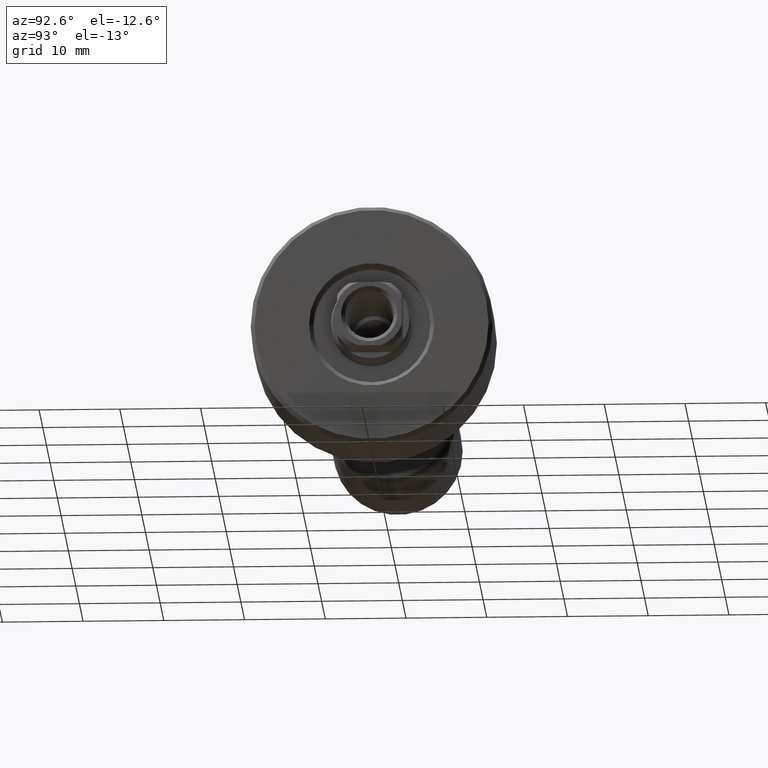
[diagram: clean part render]
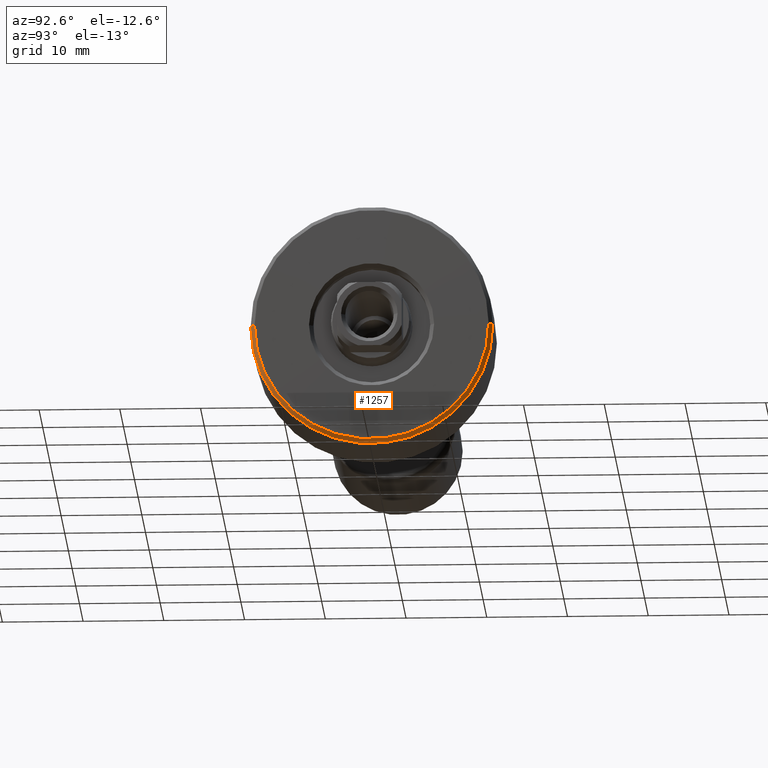
[diagram: same view with one face highlighted and labeled with its STEP entity id]
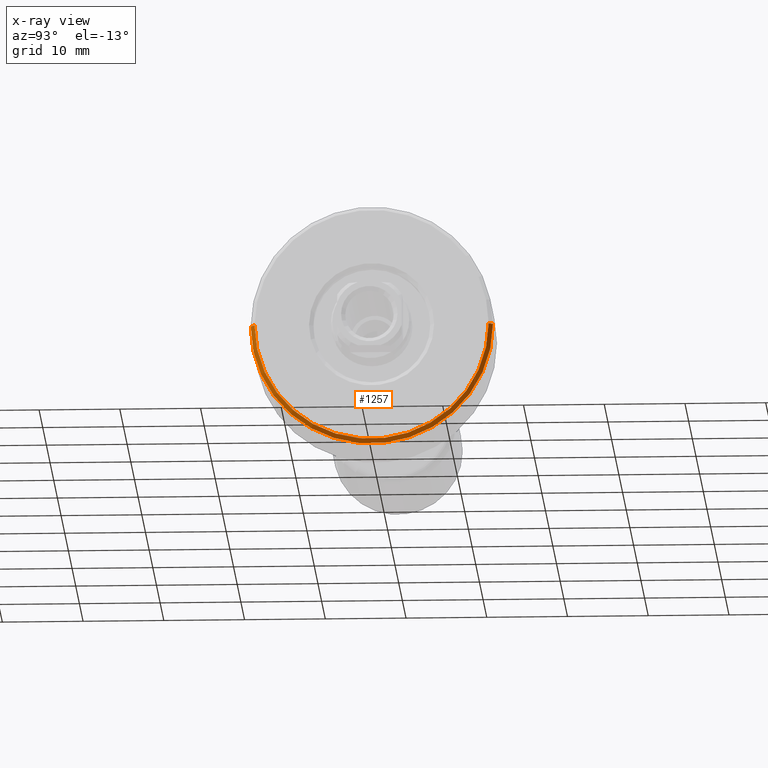
[diagram: x-ray of the same camera — body ghosted, the highlighted face saturated]
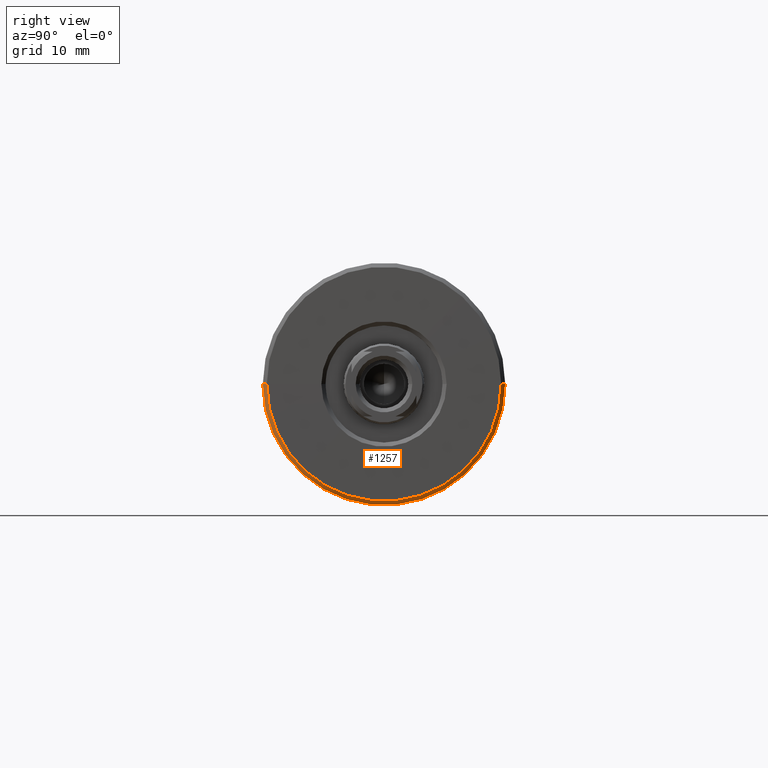
[diagram: same view with one face highlighted and labeled with its STEP entity id]
A machine part, auxiliary view. The second image highlights one B-rep face of the part: STEP entity #1257.
The next image is the same camera in x-ray: the body ghosted, the highlighted face saturated — about 0% of this face is hidden behind the body in this view.
A second angle (right view) of the same face is appended — the face is thin or edge-on in the first view.
In plain terms, the highlighted conical surface has half-angle 45 deg.
Its self-contained STEP definition (entity closure, byte-faithful):
#95 = EDGE_CURVE ( 'NONE', #1512, #2361, #1477, .T. ) ;
#160 = VECTOR ( 'NONE', #1825, 1000.000000000000114 ) ;
#253 = CARTESIAN_POINT ( 'NONE',  ( -0.1000000000006620593, -1.936230527284280752E-14, 0.000000000000000000 ) ) ;
#289 = CARTESIAN_POINT ( 'NONE',  ( -0.6000000000006806555, 14.99999999999996270, 1.836970198721027617E-15 ) ) ;
#291 = EDGE_LOOP ( 'NONE', ( #1732, #1491, #1517, #1474 ) ) ;
#364 = CIRCLE ( 'NONE', #1074, 14.99999999999998224 ) ;
#405 = DIRECTION ( 'NONE',  ( -6.432932890080667202E-16, -1.000000000000000000, 0.000000000000000000 ) ) ;
#555 = CARTESIAN_POINT ( 'NONE',  ( -0.1000000000006713574, -14.49999999999997335, 0.000000000000000000 ) ) ;
#611 = DIRECTION ( 'NONE',  ( -1.000000000000000000, 6.415603269213350828E-16, -0.000000000000000000 ) ) ;
#676 = AXIS2_PLACEMENT_3D ( 'NONE', #774, #611, #405 ) ;
#758 = CONICAL_SURFACE ( 'NONE', #676, 14.99999999999998224, 0.7853981633974482790 ) ;
#767 = EDGE_CURVE ( 'NONE', #1512, #1010, #1061, .T. ) ;
#774 = CARTESIAN_POINT ( 'NONE',  ( -0.6000000000006902034, -1.904152510938211848E-14, 0.000000000000000000 ) ) ;
#812 = EDGE_CURVE ( 'NONE', #1010, #1483, #364, .T. ) ;
#1010 = VERTEX_POINT ( 'NONE', #1208 ) ;
#1061 = LINE ( 'NONE', #289, #160 ) ;
#1074 = AXIS2_PLACEMENT_3D ( 'NONE', #1498, #2230, #1682 ) ;
#1117 = EDGE_CURVE ( 'NONE', #2361, #1483, #1715, .T. ) ;
#1189 = DIRECTION ( 'NONE',  ( -6.411747330388434316E-16, -1.000000000000000000, 0.000000000000000000 ) ) ;
#1208 = CARTESIAN_POINT ( 'NONE',  ( -0.6000000000006806555, 14.99999999999996270, 1.836970198721027617E-15 ) ) ;
#1257 = ADVANCED_FACE ( 'NONE', ( #2118 ), #758, .T. ) ;
#1400 = VECTOR ( 'NONE', #2269, 1000.000000000000114 ) ;
#1474 = ORIENTED_EDGE ( 'NONE', *, *, #812, .F. ) ;
#1477 = CIRCLE ( 'NONE', #1915, 14.49999999999995381 ) ;
#1483 = VERTEX_POINT ( 'NONE', #2075 ) ;
#1491 = ORIENTED_EDGE ( 'NONE', *, *, #95, .T. ) ;
#1498 = CARTESIAN_POINT ( 'NONE',  ( -0.6000000000006902034, -1.904152510938211848E-14, 0.000000000000000000 ) ) ;
#1512 = VERTEX_POINT ( 'NONE', #2435 ) ;
#1517 = ORIENTED_EDGE ( 'NONE', *, *, #1117, .T. ) ;
#1682 = DIRECTION ( 'NONE',  ( -6.432932890080667202E-16, -1.000000000000000000, 0.000000000000000000 ) ) ;
#1687 = CARTESIAN_POINT ( 'NONE',  ( -0.6000000000006998624, -15.00000000000000178, 0.000000000000000000 ) ) ;
#1715 = LINE ( 'NONE', #1687, #1400 ) ;
#1732 = ORIENTED_EDGE ( 'NONE', *, *, #767, .F. ) ;
#1825 = DIRECTION ( 'NONE',  ( -0.7071067811865470176, 0.7071067811865479058, 8.659560562354932858E-17 ) ) ;
#1915 = AXIS2_PLACEMENT_3D ( 'NONE', #253, #2155, #1189 ) ;
#2075 = CARTESIAN_POINT ( 'NONE',  ( -0.6000000000006998624, -15.00000000000000178, 0.000000000000000000 ) ) ;
#2118 = FACE_OUTER_BOUND ( 'NONE', #291, .T. ) ;
#2155 = DIRECTION ( 'NONE',  ( -1.000000000000000000, 6.415603269213350828E-16, -0.000000000000000000 ) ) ;
#2230 = DIRECTION ( 'NONE',  ( -1.000000000000000000, 6.415603269213350828E-16, -0.000000000000000000 ) ) ;
#2269 = DIRECTION ( 'NONE',  ( -0.7071067811865479058, -0.7071067811865470176, 0.000000000000000000 ) ) ;
#2361 = VERTEX_POINT ( 'NONE', #555 ) ;
#2435 = CARTESIAN_POINT ( 'NONE',  ( -0.1000000000006527612, 14.49999999999993427, 1.806354028742341858E-15 ) ) ;